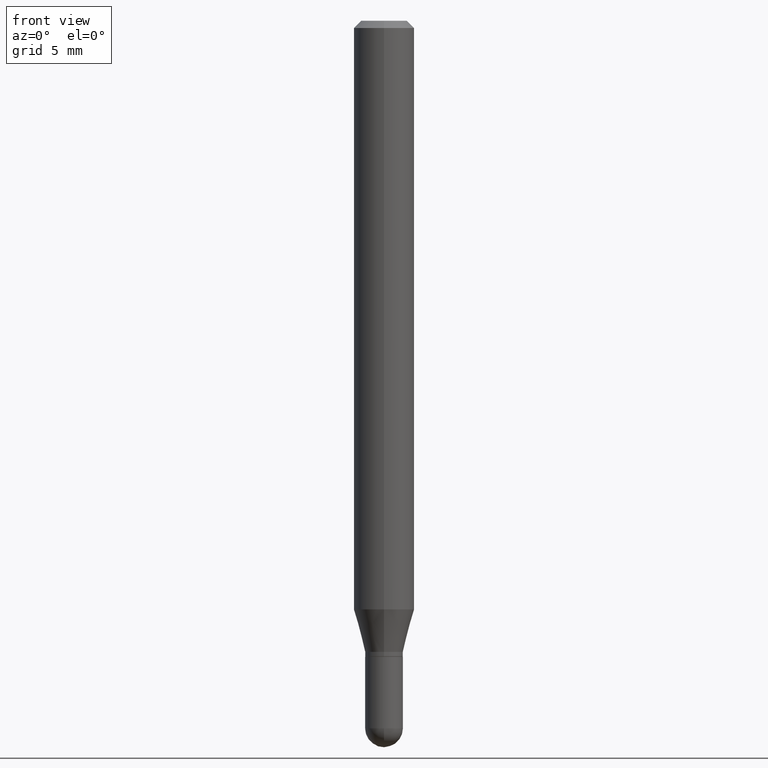
[diagram: clean part render]
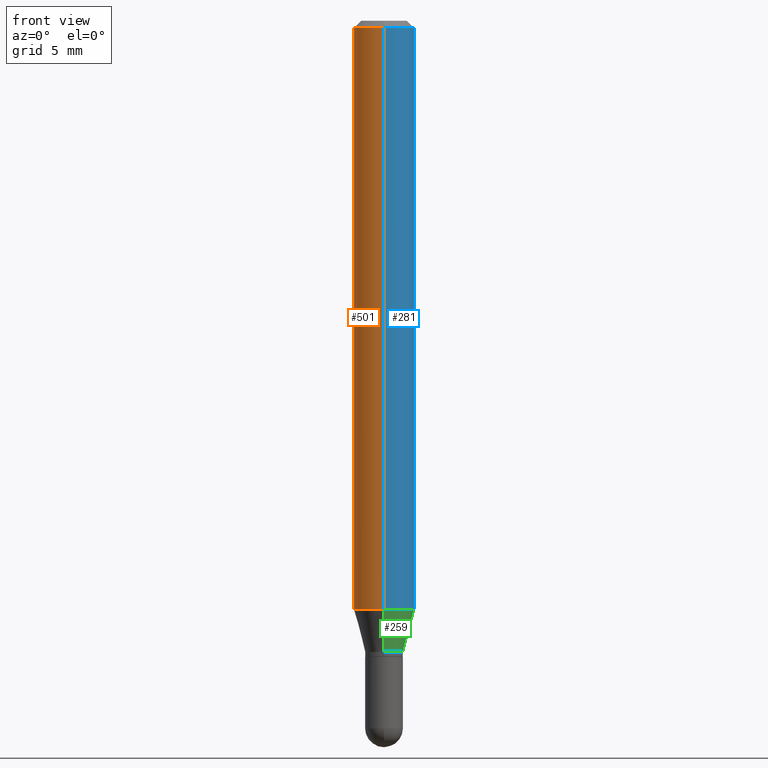
[diagram: same view with three faces highlighted in distinct colors, each labeled with its STEP entity id]
A machine part, front view with three faces highlighted in distinct colors.
Their STEP definitions:

[orange] entity #501 — the highlighted cylindrical surface (edge-blend (fillet) strip) has radius 1.5875 mm, axis along (-0, 0, 1).
#33 = CARTESIAN_POINT ( 'NONE',  ( 4.440892098500920012E-16, 0.06249999999999572564, -1.215483408562509915 ) ) ;
#79 = CIRCLE ( 'NONE', #458, 0.06250000000000000000 ) ;
#104 = EDGE_CURVE ( 'NONE', #328, #296, #279, .T. ) ;
#118 = CARTESIAN_POINT ( 'NONE',  ( 4.440892098500924943E-16, 0.06249999999999993755, -0.01500000000000022669 ) ) ;
#127 = AXIS2_PLACEMENT_3D ( 'NONE', #368, #329, #178 ) ;
#128 = DIRECTION ( 'NONE',  ( -6.982962677686265922E-15, -1.000000000000000000, 3.491529342725254773E-15 ) ) ;
#130 = DIRECTION ( 'NONE',  ( -2.445435285253421308E-29, 3.491529342725255167E-15, 1.000000000000000000 ) ) ;
#132 = CARTESIAN_POINT ( 'NONE',  ( 0.000000000000000000, 0.000000000000000000, 0.000000000000000000 ) ) ;
#143 = CIRCLE ( 'NONE', #127, 0.06250000000000000000 ) ;
#169 = FACE_OUTER_BOUND ( 'NONE', #282, .T. ) ;
#170 = CARTESIAN_POINT ( 'NONE',  ( 4.440892098500625669E-16, 0.06250000000000000000, -2.182205839203284233E-16 ) ) ;
#172 = ORIENTED_EDGE ( 'NONE', *, *, #421, .T. ) ;
#175 = EDGE_CURVE ( 'NONE', #296, #447, #143, .T. ) ;
#178 = DIRECTION ( 'NONE',  ( -6.982962677686265922E-15, -1.000000000000000000, 3.483106191921935554E-15 ) ) ;
#179 = VECTOR ( 'NONE', #436, 39.37007874015748143 ) ;
#190 = CARTESIAN_POINT ( 'NONE',  ( -4.364351673553621857E-16, -0.06250000000000427436, -1.215483408562509471 ) ) ;
#199 = CARTESIAN_POINT ( 'NONE',  ( 2.972386015938861663E-29, -4.243895986591712384E-15, -1.215483408562509693 ) ) ;
#251 = VERTEX_POINT ( 'NONE', #190 ) ;
#267 = LINE ( 'NONE', #321, #179 ) ;
#279 = LINE ( 'NONE', #170, #499 ) ;
#282 = EDGE_LOOP ( 'NONE', ( #407, #290, #172, #489 ) ) ;
#290 = ORIENTED_EDGE ( 'NONE', *, *, #468, .T. ) ;
#296 = VERTEX_POINT ( 'NONE', #118 ) ;
#310 = CARTESIAN_POINT ( 'NONE',  ( -4.364351673553912750E-16, -0.06250000000000005551, -0.01499999999999979128 ) ) ;
#321 = CARTESIAN_POINT ( 'NONE',  ( -4.364351673553916201E-16, -0.06250000000000000000, 2.182205839203284233E-16 ) ) ;
#323 = DIRECTION ( 'NONE',  ( -2.445435285253421308E-29, 3.491529342725254773E-15, 1.000000000000000000 ) ) ;
#328 = VERTEX_POINT ( 'NONE', #33 ) ;
#329 = DIRECTION ( 'NONE',  ( -2.445435285253421308E-29, 3.491529342725255167E-15, 1.000000000000000000 ) ) ;
#368 = CARTESIAN_POINT ( 'NONE',  ( 3.668152927880133994E-31, -5.237294014087885586E-17, -0.01500000000000000812 ) ) ;
#407 = ORIENTED_EDGE ( 'NONE', *, *, #104, .F. ) ;
#421 = EDGE_CURVE ( 'NONE', #251, #447, #267, .T. ) ;
#431 = DIRECTION ( 'NONE',  ( -2.445435285253421308E-29, 3.491529342725255167E-15, 1.000000000000000000 ) ) ;
#436 = DIRECTION ( 'NONE',  ( -2.445435285253421308E-29, 3.491529342725254773E-15, 1.000000000000000000 ) ) ;
#447 = VERTEX_POINT ( 'NONE', #310 ) ;
#458 = AXIS2_PLACEMENT_3D ( 'NONE', #199, #130, #508 ) ;
#468 = EDGE_CURVE ( 'NONE', #328, #251, #79, .T. ) ;
#474 = AXIS2_PLACEMENT_3D ( 'NONE', #132, #431, #128 ) ;
#475 = CYLINDRICAL_SURFACE ( 'NONE', #474, 0.06250000000000000000 ) ;
#489 = ORIENTED_EDGE ( 'NONE', *, *, #175, .F. ) ;
#499 = VECTOR ( 'NONE', #323, 39.37007874015748143 ) ;
#501 = ADVANCED_FACE ( 'NONE', ( #169 ), #475, .T. ) ;
#508 = DIRECTION ( 'NONE',  ( -6.982962677686265922E-15, -1.000000000000000000, 4.370956789862821150E-15 ) ) ;

[blue] entity #281 — the highlighted cylindrical surface (edge-blend (fillet) strip) has radius 1.5875 mm, axis along (-0, 0, 1).
#12 = ORIENTED_EDGE ( 'NONE', *, *, #104, .T. ) ;
#24 = EDGE_LOOP ( 'NONE', ( #239, #12, #258, #338 ) ) ;
#33 = CARTESIAN_POINT ( 'NONE',  ( 4.440892098500920012E-16, 0.06249999999999572564, -1.215483408562509915 ) ) ;
#35 = DIRECTION ( 'NONE',  ( -2.445435285253421308E-29, 3.491529342725255167E-15, 1.000000000000000000 ) ) ;
#40 = CARTESIAN_POINT ( 'NONE',  ( 3.668152927880133994E-31, -5.237294014087885586E-17, -0.01500000000000000812 ) ) ;
#84 = CARTESIAN_POINT ( 'NONE',  ( 2.972386015938861663E-29, -4.243895986591712384E-15, -1.215483408562509693 ) ) ;
#104 = EDGE_CURVE ( 'NONE', #328, #296, #279, .T. ) ;
#118 = CARTESIAN_POINT ( 'NONE',  ( 4.440892098500924943E-16, 0.06249999999999993755, -0.01500000000000022669 ) ) ;
#152 = EDGE_CURVE ( 'NONE', #251, #328, #448, .T. ) ;
#170 = CARTESIAN_POINT ( 'NONE',  ( 4.440892098500625669E-16, 0.06250000000000000000, -2.182205839203284233E-16 ) ) ;
#179 = VECTOR ( 'NONE', #436, 39.37007874015748143 ) ;
#190 = CARTESIAN_POINT ( 'NONE',  ( -4.364351673553621857E-16, -0.06250000000000427436, -1.215483408562509471 ) ) ;
#193 = DIRECTION ( 'NONE',  ( -2.445435285253421308E-29, 3.491529342725255167E-15, 1.000000000000000000 ) ) ;
#239 = ORIENTED_EDGE ( 'NONE', *, *, #152, .T. ) ;
#246 = AXIS2_PLACEMENT_3D ( 'NONE', #40, #193, #324 ) ;
#251 = VERTEX_POINT ( 'NONE', #190 ) ;
#258 = ORIENTED_EDGE ( 'NONE', *, *, #470, .F. ) ;
#262 = DIRECTION ( 'NONE',  ( -6.982962677686265922E-15, -1.000000000000000000, 4.370956789862821150E-15 ) ) ;
#267 = LINE ( 'NONE', #321, #179 ) ;
#279 = LINE ( 'NONE', #170, #499 ) ;
#281 = ADVANCED_FACE ( 'NONE', ( #464 ), #461, .T. ) ;
#296 = VERTEX_POINT ( 'NONE', #118 ) ;
#310 = CARTESIAN_POINT ( 'NONE',  ( -4.364351673553912750E-16, -0.06250000000000005551, -0.01499999999999979128 ) ) ;
#321 = CARTESIAN_POINT ( 'NONE',  ( -4.364351673553916201E-16, -0.06250000000000000000, 2.182205839203284233E-16 ) ) ;
#323 = DIRECTION ( 'NONE',  ( -2.445435285253421308E-29, 3.491529342725254773E-15, 1.000000000000000000 ) ) ;
#324 = DIRECTION ( 'NONE',  ( -6.982962677686265922E-15, -1.000000000000000000, 3.483106191921935554E-15 ) ) ;
#328 = VERTEX_POINT ( 'NONE', #33 ) ;
#338 = ORIENTED_EDGE ( 'NONE', *, *, #421, .F. ) ;
#340 = DIRECTION ( 'NONE',  ( -6.982962677686265922E-15, -1.000000000000000000, 3.491529342725254773E-15 ) ) ;
#360 = CIRCLE ( 'NONE', #246, 0.06250000000000000000 ) ;
#382 = AXIS2_PLACEMENT_3D ( 'NONE', #84, #35, #262 ) ;
#421 = EDGE_CURVE ( 'NONE', #251, #447, #267, .T. ) ;
#423 = CARTESIAN_POINT ( 'NONE',  ( 0.000000000000000000, 0.000000000000000000, 0.000000000000000000 ) ) ;
#429 = AXIS2_PLACEMENT_3D ( 'NONE', #423, #505, #340 ) ;
#436 = DIRECTION ( 'NONE',  ( -2.445435285253421308E-29, 3.491529342725254773E-15, 1.000000000000000000 ) ) ;
#447 = VERTEX_POINT ( 'NONE', #310 ) ;
#448 = CIRCLE ( 'NONE', #382, 0.06250000000000000000 ) ;
#461 = CYLINDRICAL_SURFACE ( 'NONE', #429, 0.06250000000000000000 ) ;
#464 = FACE_OUTER_BOUND ( 'NONE', #24, .T. ) ;
#470 = EDGE_CURVE ( 'NONE', #447, #296, #360, .T. ) ;
#499 = VECTOR ( 'NONE', #323, 39.37007874015748143 ) ;
#505 = DIRECTION ( 'NONE',  ( -2.445435285253421308E-29, 3.491529342725255167E-15, 1.000000000000000000 ) ) ;

[green] entity #259 — the highlighted conical surface has half-angle 15 deg.
#5 = CARTESIAN_POINT ( 'NONE',  ( -2.726846925636162763E-16, -0.03905000000000447002, -1.302999999999999936 ) ) ;
#9 = AXIS2_PLACEMENT_3D ( 'NONE', #395, #201, #356 ) ;
#29 = CARTESIAN_POINT ( 'NONE',  ( 3.186402176685208399E-29, -4.549462733571007534E-15, -1.302999999999999936 ) ) ;
#33 = CARTESIAN_POINT ( 'NONE',  ( 4.440892098500920012E-16, 0.06249999999999572564, -1.215483408562509915 ) ) ;
#35 = DIRECTION ( 'NONE',  ( -2.445435285253421308E-29, 3.491529342725255167E-15, 1.000000000000000000 ) ) ;
#63 = ORIENTED_EDGE ( 'NONE', *, *, #157, .F. ) ;
#72 = DIRECTION ( 'NONE',  ( -1.807323732225327773E-15, -0.2588190451025178529, 0.9659258262890690894 ) ) ;
#84 = CARTESIAN_POINT ( 'NONE',  ( 2.972386015938861663E-29, -4.243895986591712384E-15, -1.215483408562509693 ) ) ;
#95 = ORIENTED_EDGE ( 'NONE', *, *, #152, .F. ) ;
#96 = CONICAL_SURFACE ( 'NONE', #405, 0.03904999999999992505, 0.2617993877991499074 ) ;
#133 = EDGE_CURVE ( 'NONE', #166, #328, #309, .T. ) ;
#148 = LINE ( 'NONE', #300, #483 ) ;
#152 = EDGE_CURVE ( 'NONE', #251, #328, #448, .T. ) ;
#157 = EDGE_CURVE ( 'NONE', #454, #251, #148, .T. ) ;
#159 = CARTESIAN_POINT ( 'NONE',  ( 2.774669383143503417E-16, 0.03904999999999537313, -1.302999999999999936 ) ) ;
#166 = VERTEX_POINT ( 'NONE', #212 ) ;
#188 = DIRECTION ( 'NONE',  ( -2.445435285253421308E-29, 3.491529342725255167E-15, 1.000000000000000000 ) ) ;
#190 = CARTESIAN_POINT ( 'NONE',  ( -4.364351673553621857E-16, -0.06250000000000427436, -1.215483408562509471 ) ) ;
#191 = DIRECTION ( 'NONE',  ( -6.982962677686265133E-15, -1.000000000000000000, 0.000000000000000000 ) ) ;
#201 = DIRECTION ( 'NONE',  ( -2.445435285253421308E-29, 3.491529342725255167E-15, 1.000000000000000000 ) ) ;
#211 = ORIENTED_EDGE ( 'NONE', *, *, #410, .T. ) ;
#212 = CARTESIAN_POINT ( 'NONE',  ( 3.607780740822213933E-16, 0.03904999999999537313, -1.302999999999999936 ) ) ;
#251 = VERTEX_POINT ( 'NONE', #190 ) ;
#259 = ADVANCED_FACE ( 'NONE', ( #344 ), #96, .T. ) ;
#262 = DIRECTION ( 'NONE',  ( -6.982962677686265922E-15, -1.000000000000000000, 4.370956789862821150E-15 ) ) ;
#300 = CARTESIAN_POINT ( 'NONE',  ( -2.726846925636162763E-16, -0.03905000000000447002, -1.302999999999999936 ) ) ;
#309 = LINE ( 'NONE', #159, #343 ) ;
#312 = DIRECTION ( 'NONE',  ( 1.839019923739597554E-15, 0.2588190451025245697, 0.9659258262890670910 ) ) ;
#328 = VERTEX_POINT ( 'NONE', #33 ) ;
#343 = VECTOR ( 'NONE', #312, 39.37007874015748854 ) ;
#344 = FACE_OUTER_BOUND ( 'NONE', #492, .T. ) ;
#356 = DIRECTION ( 'NONE',  ( -6.982962677686265133E-15, -1.000000000000000000, 0.000000000000000000 ) ) ;
#382 = AXIS2_PLACEMENT_3D ( 'NONE', #84, #35, #262 ) ;
#395 = CARTESIAN_POINT ( 'NONE',  ( 3.186402176685208399E-29, -4.549462733571007534E-15, -1.302999999999999936 ) ) ;
#405 = AXIS2_PLACEMENT_3D ( 'NONE', #29, #188, #191 ) ;
#410 = EDGE_CURVE ( 'NONE', #454, #166, #481, .T. ) ;
#448 = CIRCLE ( 'NONE', #382, 0.06250000000000000000 ) ;
#454 = VERTEX_POINT ( 'NONE', #5 ) ;
#481 = CIRCLE ( 'NONE', #9, 0.03904999999999992505 ) ;
#483 = VECTOR ( 'NONE', #72, 39.37007874015748143 ) ;
#487 = ORIENTED_EDGE ( 'NONE', *, *, #133, .T. ) ;
#492 = EDGE_LOOP ( 'NONE', ( #211, #487, #95, #63 ) ) ;